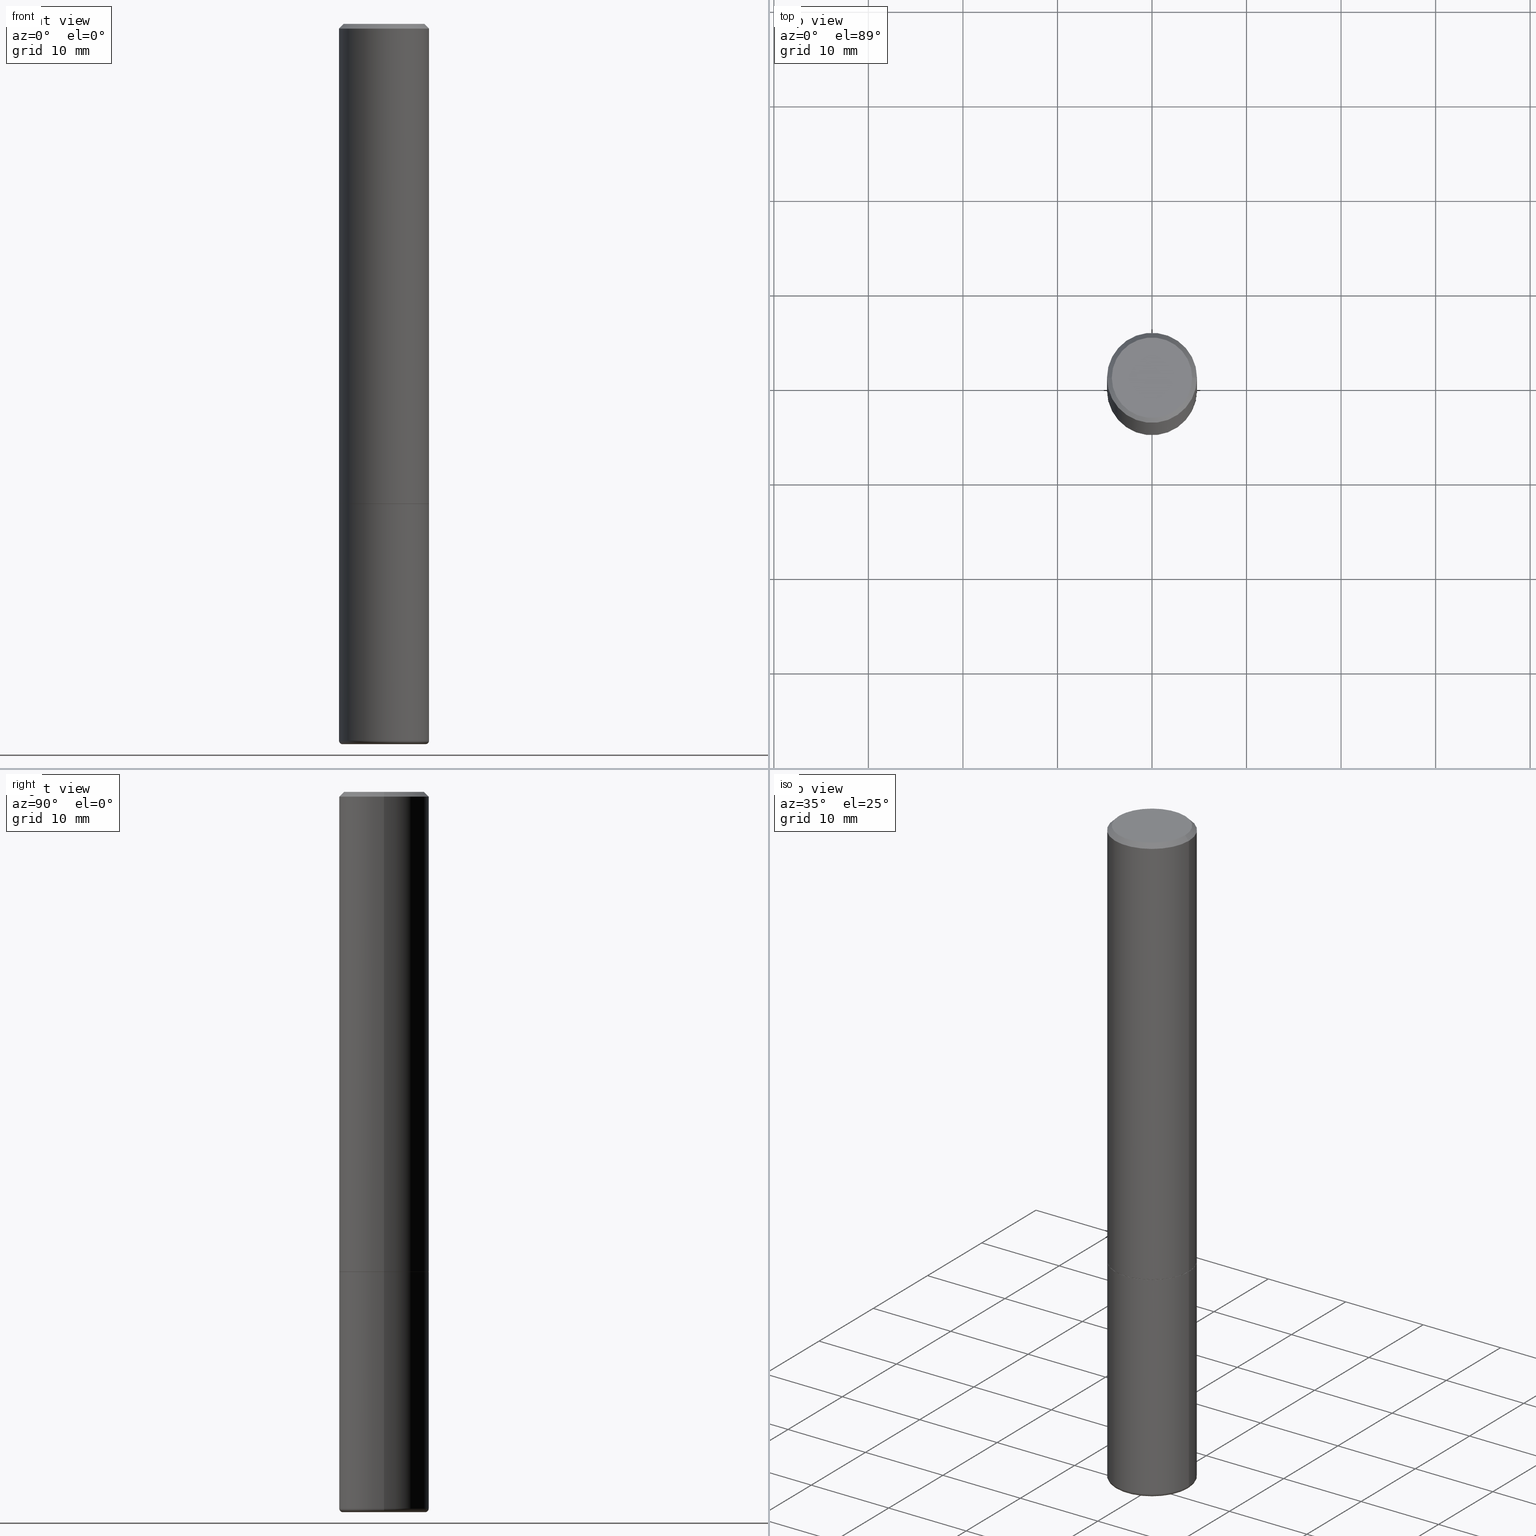
[diagram: canonical four-view strip — front | top / right | iso, engineering-drawing reading convention]
A machine part, canonical four-view strip (front | top / right | iso — engineering-drawing reading convention). The complete STEP part file that produces these views, byte-faithful:
ISO-10303-21;
HEADER;
FILE_DESCRIPTION (( 'STEP AP203' ),
    '1' );
FILE_NAME ('35680.STEP',
    '2022-11-02T20:40:26',
    ( '' ),
    ( '' ),
    'SwSTEP 2.0',
    'SolidWorks 2022',
    '' );
FILE_SCHEMA (( 'CONFIG_CONTROL_DESIGN' ));
ENDSEC;

DATA;
#1 = CC_DESIGN_PERSON_AND_ORGANIZATION_ASSIGNMENT ( #162, #322, ( #224 ) ) ;
#2 = APPLICATION_PROTOCOL_DEFINITION ( 'international standard', 'config_control_design', 1994, #86 ) ;
#3 = ADVANCED_FACE ( 'NONE', ( #143 ), #356, .F. ) ;
#4 = DIRECTION ( 'NONE',  ( -1.000000000000000000, 6.982962677686265922E-15, -4.876176775795935793E-29 ) ) ;
#5 = CIRCLE ( 'NONE', #76, 0.1523703519675246587 ) ;
#6 = EDGE_LOOP ( 'NONE', ( #138, #144, #220, #173 ) ) ;
#7 = VECTOR ( 'NONE', #341, 39.37007874015748854 ) ;
#8 = AXIS2_PLACEMENT_3D ( 'NONE', #98, #256, #100 ) ;
#9 = CARTESIAN_POINT ( 'NONE',  ( -1.043851414335219820E-46, 1.490343170380447200E-32, 4.268512490100411279E-18 ) ) ;
#10 = CARTESIAN_POINT ( 'NONE',  ( 4.890937612370274875E-29, -6.982962677686292743E-15, -2.000000000000000444 ) ) ;
#11 = CARTESIAN_POINT ( 'NONE',  ( 0.1874999999999996392, -1.309305502066172642E-15, 9.142831454617361395E-30 ) ) ;
#12 = DIRECTION ( 'NONE',  ( -2.445468806185136597E-29, 3.491481338843145583E-15, 1.000000000000000000 ) ) ;
#13 = AXIS2_PLACEMENT_3D ( 'NONE', #264, #355, #4 ) ;
#14 = CARTESIAN_POINT ( 'NONE',  ( -1.043851414335219820E-46, 1.490343170380447200E-32, 4.268512490100411279E-18 ) ) ;
#15 = EDGE_CURVE ( 'NONE', #181, #215, #127, .T. ) ;
#16 = ORIENTED_EDGE ( 'NONE', *, *, #37, .T. ) ;
#17 = CARTESIAN_POINT ( 'NONE',  ( -0.1874999999999992228, 1.239475875289306582E-15, -0.02000000000000008021 ) ) ;
#18 = DIRECTION ( 'NONE',  ( 1.000000000000000000, -6.982962677686267499E-15, 0.000000000000000000 ) ) ;
#19 = EDGE_CURVE ( 'NONE', #181, #104, #24, .T. ) ;
#20 = DIRECTION ( 'NONE',  ( -2.445468806185136597E-29, 3.491481338843145583E-15, 1.000000000000000000 ) ) ;
#21 = PLANE ( 'NONE',  #411 ) ;
#22 = ORIENTED_EDGE ( 'NONE', *, *, #197, .T. ) ;
#23 = CARTESIAN_POINT ( 'NONE',  ( 7.299725783202014843E-29, -1.042207379062045357E-14, -2.985000571154037718 ) ) ;
#24 = LINE ( 'NONE', #178, #240 ) ;
#25 = FACE_OUTER_BOUND ( 'NONE', #288, .T. ) ;
#26 = ORIENTED_EDGE ( 'NONE', *, *, #199, .F. ) ;
#27 = ORIENTED_EDGE ( 'NONE', *, *, #324, .F. ) ;
#28 = EDGE_LOOP ( 'NONE', ( #294, #255 ) ) ;
#29 = LINE ( 'NONE', #221, #7 ) ;
#30 = ORIENTED_EDGE ( 'NONE', *, *, #184, .F. ) ;
#31 = PERSON_AND_ORGANIZATION ( #477, #148 ) ;
#32 = UNCERTAINTY_MEASURE_WITH_UNIT (LENGTH_MEASURE( 1.000000000000000082E-05 ), #236, 'distance_accuracy_value', 'NONE');
#33 = ADVANCED_FACE ( 'NONE', ( #383 ), #21, .F. ) ;
#34 = APPROVAL ( #198, 'UNSPECIFIED' ) ;
#35 = CALENDAR_DATE ( 2022, 2, 11 ) ;
#36 = ORIENTED_EDGE ( 'NONE', *, *, #227, .T. ) ;
#37 = EDGE_CURVE ( 'NONE', #302, #208, #442, .T. ) ;
#38 = VERTEX_POINT ( 'NONE', #101 ) ;
#39 = CONICAL_SURFACE ( 'NONE', #394, 0.1523703519675246587, 1.535889741755009030 ) ;
#40 = CC_DESIGN_PERSON_AND_ORGANIZATION_ASSIGNMENT ( #31, #65, ( #210 ) ) ;
#41 = PRODUCT_DEFINITION ( 'UNKNOWN', '', #224, #63 ) ;
#42 = CIRCLE ( 'NONE', #50, 0.1723691019675246683 ) ;
#43 = DIRECTION ( 'NONE',  ( 1.000000000000000000, -6.982962677686266711E-15, 0.000000000000000000 ) ) ;
#44 = EDGE_CURVE ( 'NONE', #215, #58, #414, .T. ) ;
#45 = CARTESIAN_POINT ( 'NONE',  ( -0.1523703519675246587, -9.409838179720655095E-15, -2.999825473552770294 ) ) ;
#46 = DIRECTION ( 'NONE',  ( 1.000000000000000000, -6.982962677686266711E-15, 0.000000000000000000 ) ) ;
#47 = CARTESIAN_POINT ( 'NONE',  ( 7.336406418555409790E-29, -1.047444401652943635E-14, -3.000000000000000444 ) ) ;
#48 = CARTESIAN_POINT ( 'NONE',  ( 0.000000000000000000, 0.000000000000000000, 0.000000000000000000 ) ) ;
#49 = CONICAL_SURFACE ( 'NONE', #349, 0.1874999999999992228, 0.7853981633974477239 ) ;
#50 = AXIS2_PLACEMENT_3D ( 'NONE', #397, #131, #473 ) ;
#51 = LINE ( 'NONE', #11, #321 ) ;
#52 = CARTESIAN_POINT ( 'NONE',  ( 4.890937612370293302E-31, -6.982962677686318726E-17, -0.02000000000000008021 ) ) ;
#53 = CARTESIAN_POINT ( 'NONE',  ( 1.309305502066224115E-15, 0.1874999999999930611, -2.000000000000000888 ) ) ;
#54 = CARTESIAN_POINT ( 'NONE',  ( 7.336406418555409790E-29, -1.047444401652943635E-14, -3.000000000000000444 ) ) ;
#55 = ORIENTED_EDGE ( 'NONE', *, *, #419, .T. ) ;
#56 = DIRECTION ( 'NONE',  ( -2.445468806185136597E-29, 3.491481338843145583E-15, 1.000000000000000000 ) ) ;
#57 = EDGE_CURVE ( 'NONE', #271, #70, #29, .T. ) ;
#58 = VERTEX_POINT ( 'NONE', #103 ) ;
#59 = AXIS2_PLACEMENT_3D ( 'NONE', #23, #409, #329 ) ;
#60 = APPROVAL_PERSON_ORGANIZATION ( #185, #331, #418 ) ;
#61 = VERTEX_POINT ( 'NONE', #140 ) ;
#62 =( NAMED_UNIT ( * ) PLANE_ANGLE_UNIT ( ) SI_UNIT ( $, .RADIAN. ) );
#63 = DESIGN_CONTEXT ( 'detailed design', #278, 'design' ) ;
#64 = DIRECTION ( 'NONE',  ( -0.7071067811864388819, 7.493145998869961307E-15, 0.7071067811866561525 ) ) ;
#65 = PERSON_AND_ORGANIZATION_ROLE ( 'design_owner' ) ;
#66 = EDGE_CURVE ( 'NONE', #70, #309, #69, .T. ) ;
#67 = DIRECTION ( 'NONE',  ( -2.445468806185136597E-29, 3.491481338843145583E-15, 1.000000000000000000 ) ) ;
#68 = ORIENTED_EDGE ( 'NONE', *, *, #392, .T. ) ;
#69 = CIRCLE ( 'NONE', #193, 0.1523703519675246587 ) ;
#70 = VERTEX_POINT ( 'NONE', #45 ) ;
#71 = ADVANCED_FACE ( 'NONE', ( #325 ), #470, .T. ) ;
#72 = AXIS2_PLACEMENT_3D ( 'NONE', #145, #382, #182 ) ;
#73 = ORIENTED_EDGE ( 'NONE', *, *, #141, .T. ) ;
#74 = CARTESIAN_POINT ( 'NONE',  ( 0.1723691019675246683, -1.165698189545531710E-14, -3.000000000000000444 ) ) ;
#75 = ORIENTED_EDGE ( 'NONE', *, *, #141, .F. ) ;
#76 = AXIS2_PLACEMENT_3D ( 'NONE', #237, #67, #389 ) ;
#77 = CC_DESIGN_APPROVAL ( #331, ( #41 ) ) ;
#78 = EDGE_CURVE ( 'NONE', #115, #149, #385, .T. ) ;
#79 = COORDINATED_UNIVERSAL_TIME_OFFSET ( 5, 0, .BEHIND. ) ;
#80 = DATE_TIME_ROLE ( 'creation_date' ) ;
#81 = DIRECTION ( 'NONE',  ( -2.445468806185136597E-29, 3.491481338843145583E-15, 1.000000000000000000 ) ) ;
#82 = EDGE_CURVE ( 'NONE', #149, #377, #478, .T. ) ;
#83 = CALENDAR_DATE ( 2022, 2, 11 ) ;
#84 = CONICAL_SURFACE ( 'NONE', #187, 0.1874999999999992228, 0.7853981633974477239 ) ;
#85 = LOCAL_TIME ( 16, 40, 26.00000000000000000, #79 ) ;
#86 = APPLICATION_CONTEXT ( 'configuration controlled 3d designs of mechanical parts and assemblies' ) ;
#87 = DIRECTION ( 'NONE',  ( -0.7071067811865471286, 2.468850131082252722E-15, -0.7071067811865479058 ) ) ;
#88 = CARTESIAN_POINT ( 'NONE',  ( 0.1874999999999992228, -1.356173001359019944E-15, -0.02000000000000008021 ) ) ;
#89 = DIRECTION ( 'NONE',  ( 2.438088387897960049E-29, -3.491481338843145188E-15, -1.000000000000000000 ) ) ;
#90 = CYLINDRICAL_SURFACE ( 'NONE', #154, 0.1874999999999999722 ) ;
#91 = CARTESIAN_POINT ( 'NONE',  ( -0.1874999999999992228, 1.239475875289306582E-15, -0.02000000000000008021 ) ) ;
#92 = ORIENTED_EDGE ( 'NONE', *, *, #291, .T. ) ;
#93 = FACE_OUTER_BOUND ( 'NONE', #489, .T. ) ;
#94 = AXIS2_PLACEMENT_3D ( 'NONE', #270, #304, #484 ) ;
#95 = AXIS2_PLACEMENT_3D ( 'NONE', #54, #171, #102 ) ;
#96 = SECURITY_CLASSIFICATION ( '', '', #359 ) ;
#97 = EDGE_LOOP ( 'NONE', ( #246, #378, #75, #229 ) ) ;
#98 = CARTESIAN_POINT ( 'NONE',  ( 0.1725000000000002087, -1.162663485252133521E-14, -2.985000571154037718 ) ) ;
#99 = ORIENTED_EDGE ( 'NONE', *, *, #44, .F. ) ;
#100 = DIRECTION ( 'NONE',  ( 1.000000000000000000, -6.982962677686213068E-15, 0.000000000000000000 ) ) ;
#101 = CARTESIAN_POINT ( 'NONE',  ( -0.1723691019675246683, -9.169747022437267907E-15, -3.000000000000000444 ) ) ;
#102 = DIRECTION ( 'NONE',  ( -1.000000000000000000, 6.982962677686265922E-15, 0.000000000000000000 ) ) ;
#103 = CARTESIAN_POINT ( 'NONE',  ( -0.1875000000000000278, -2.192382782011959991E-15, -1.999000000000000110 ) ) ;
#104 = VERTEX_POINT ( 'NONE', #443 ) ;
#105 = DIRECTION ( 'NONE',  ( -2.445468806185136597E-29, 3.491481338843145583E-15, 1.000000000000000000 ) ) ;
#106 = ORIENTED_EDGE ( 'NONE', *, *, #37, .F. ) ;
#107 = CIRCLE ( 'NONE', #241, 0.1874999999999992228 ) ;
#108 = DIRECTION ( 'NONE',  ( -1.000000000000000000, 6.982962677686263555E-15, 0.000000000000000000 ) ) ;
#109 = APPROVAL_STATUS ( 'not_yet_approved' ) ;
#110 = EDGE_CURVE ( 'NONE', #38, #261, #251, .T. ) ;
#111 = EDGE_LOOP ( 'NONE', ( #228, #279, #481, #298 ) ) ;
#112 = CONICAL_SURFACE ( 'NONE', #95, 0.1723691019675246683, 1.562069680534943661 ) ;
#113 = DIRECTION ( 'NONE',  ( 1.000000000000000000, -6.982962677686267499E-15, 0.000000000000000000 ) ) ;
#114 = ORIENTED_EDGE ( 'NONE', *, *, #199, .T. ) ;
#115 = VERTEX_POINT ( 'NONE', #440 ) ;
#116 = PERSON_AND_ORGANIZATION_ROLE ( 'creator' ) ;
#117 = EDGE_LOOP ( 'NONE', ( #343, #447 ) ) ;
#118 = AXIS2_PLACEMENT_3D ( 'NONE', #444, #12, #139 ) ;
#119 = APPROVAL_PERSON_ORGANIZATION ( #203, #301, #462 ) ;
#120 = ADVANCED_FACE ( 'NONE', ( #327 ), #363, .F. ) ;
#121 = ADVANCED_FACE ( 'NONE', ( #287 ), #49, .T. ) ;
#122 = APPROVAL_STATUS ( 'not_yet_approved' ) ;
#123 = PRODUCT_DEFINITION_SHAPE ( 'NONE', 'NONE',  #41 ) ;
#124 = EDGE_CURVE ( 'NONE', #215, #181, #422, .T. ) ;
#125 = DIRECTION ( 'NONE',  ( 2.445468806185136597E-29, -3.491481338843145583E-15, -1.000000000000000000 ) ) ;
#126 = CARTESIAN_POINT ( 'NONE',  ( -0.1674999999999991773, 1.204561061900875131E-15, 4.268512490092109750E-18 ) ) ;
#127 = CIRCLE ( 'NONE', #94, 0.1864999999999999714 ) ;
#128 = VECTOR ( 'NONE', #250, 39.37007874015748854 ) ;
#129 = DIRECTION ( 'NONE',  ( 1.000000000000000000, -6.982962677686265133E-15, 4.875936752492917305E-29 ) ) ;
#130 = DIRECTION ( 'NONE',  ( -2.445468806185136877E-29, 3.491481338843145188E-15, 1.000000000000000000 ) ) ;
#131 = DIRECTION ( 'NONE',  ( -2.445468806185136597E-29, 3.491481338843145583E-15, 1.000000000000000000 ) ) ;
#132 = CARTESIAN_POINT ( 'NONE',  ( 0.1523703519675246587, -1.151917115528874791E-14, -2.999825473552770294 ) ) ;
#133 = CARTESIAN_POINT ( 'NONE',  ( -0.1864999999999999714, -5.652502021145483501E-15, -2.000000000000000444 ) ) ;
#134 = DIRECTION ( 'NONE',  ( 0.7071067811865471286, -7.319954787623254468E-15, -0.7071067811865479058 ) ) ;
#135 = AXIS2_PLACEMENT_3D ( 'NONE', #10, #160, #248 ) ;
#136 = CIRCLE ( 'NONE', #351, 0.1674999999999991773 ) ;
#137 = ORIENTED_EDGE ( 'NONE', *, *, #184, .T. ) ;
#138 = ORIENTED_EDGE ( 'NONE', *, *, #15, .T. ) ;
#139 = DIRECTION ( 'NONE',  ( 1.000000000000000000, -6.982962677686271444E-15, 4.883557194083115143E-29 ) ) ;
#140 = CARTESIAN_POINT ( 'NONE',  ( 0.1874999999999999722, -1.173137929268662858E-14, -2.985000571154037718 ) ) ;
#141 = EDGE_CURVE ( 'NONE', #208, #302, #207, .T. ) ;
#142 = FACE_OUTER_BOUND ( 'NONE', #268, .T. ) ;
#143 = FACE_OUTER_BOUND ( 'NONE', #297, .T. ) ;
#144 = ORIENTED_EDGE ( 'NONE', *, *, #44, .T. ) ;
#145 = CARTESIAN_POINT ( 'NONE',  ( 0.000000000000000000, 0.000000000000000000, 0.000000000000000000 ) ) ;
#146 = ORIENTED_EDGE ( 'NONE', *, *, #490, .F. ) ;
#147 = CIRCLE ( 'NONE', #403, 0.1875000000000000278 ) ;
#148 = ORGANIZATION ( 'UNSPECIFIED', 'UNSPECIFIED', '' ) ;
#149 = VERTEX_POINT ( 'NONE', #126 ) ;
#150 = DIRECTION ( 'NONE',  ( -2.445468806185136597E-29, 3.491481338843145583E-15, 1.000000000000000000 ) ) ;
#151 = EDGE_CURVE ( 'NONE', #104, #263, #51, .T. ) ;
#152 = ORIENTED_EDGE ( 'NONE', *, *, #430, .T. ) ;
#153 = CARTESIAN_POINT ( 'NONE',  ( 0.1874999999999999722, -1.309305502066174811E-15, 9.142831454617378210E-30 ) ) ;
#154 = AXIS2_PLACEMENT_3D ( 'NONE', #48, #20, #168 ) ;
#155 = PERSON_AND_ORGANIZATION ( #477, #148 ) ;
#156 = PERSON_AND_ORGANIZATION_ROLE ( 'creator' ) ;
#157 = AXIS2_PLACEMENT_3D ( 'NONE', #272, #105, #350 ) ;
#158 = CC_DESIGN_APPROVAL ( #34, ( #224 ) ) ;
#159 = ADVANCED_FACE ( 'NONE', ( #467 ), #317, .F. ) ;
#160 = DIRECTION ( 'NONE',  ( -2.445468806185136597E-29, 3.491481338843145583E-15, 1.000000000000000000 ) ) ;
#161 = DIMENSIONAL_EXPONENTS ( 1.000000000000000000, 0.000000000000000000, 0.000000000000000000, 0.000000000000000000, 0.000000000000000000, 0.000000000000000000, 0.000000000000000000 ) ;
#162 = PERSON_AND_ORGANIZATION ( #477, #148 ) ;
#163 = DIRECTION ( 'NONE',  ( 1.000000000000000000, -6.982962677686271444E-15, 4.883557194083115143E-29 ) ) ;
#164 = DIRECTION ( 'NONE',  ( -1.000000000000000000, 6.982962677686265922E-15, 0.000000000000000000 ) ) ;
#165 = AXIS2_PLACEMENT_3D ( 'NONE', #445, #267, #449 ) ;
#166 = DIRECTION ( 'NONE',  ( 1.000000000000000000, -6.982962677686269077E-15, 0.000000000000000000 ) ) ;
#167 = AXIS2_PLACEMENT_3D ( 'NONE', #202, #245, #330 ) ;
#168 = DIRECTION ( 'NONE',  ( 1.000000000000000000, -6.982962677686266711E-15, 4.876176775795935793E-29 ) ) ;
#169 = EDGE_LOOP ( 'NONE', ( #233, #92, #347, #106 ) ) ;
#170 = CARTESIAN_POINT ( 'NONE',  ( -0.1874999999999999722, 1.332267629550187651E-15, -9.223003294227946589E-30 ) ) ;
#171 = DIRECTION ( 'NONE',  ( 2.445468806185136597E-29, -3.491481338843145583E-15, -1.000000000000000000 ) ) ;
#172 = DIRECTION ( 'NONE',  ( 1.000000000000000000, -6.982962677686265922E-15, 4.876176775795935793E-29 ) ) ;
#173 = ORIENTED_EDGE ( 'NONE', *, *, #19, .F. ) ;
#174 = FACE_OUTER_BOUND ( 'NONE', #188, .T. ) ;
#175 = AXIS2_PLACEMENT_3D ( 'NONE', #486, #455, #108 ) ;
#176 = EDGE_CURVE ( 'NONE', #149, #115, #136, .T. ) ;
#177 = CIRCLE ( 'NONE', #167, 0.1875000000000000278 ) ;
#178 = CARTESIAN_POINT ( 'NONE',  ( 0.1864999999999999714, -8.285285217074782526E-15, -2.000000000000000444 ) ) ;
#179 = FACE_OUTER_BOUND ( 'NONE', #97, .T. ) ;
#180 = ORIENTED_EDGE ( 'NONE', *, *, #124, .T. ) ;
#181 = VERTEX_POINT ( 'NONE', #206 ) ;
#182 = DIRECTION ( 'NONE',  ( 1.000000000000000000, 0.000000000000000000, 0.000000000000000000 ) ) ;
#183 = CARTESIAN_POINT ( 'NONE',  ( 4.890937612370274875E-29, -6.982962677686292743E-15, -2.000000000000000444 ) ) ;
#184 = EDGE_CURVE ( 'NONE', #58, #104, #177, .T. ) ;
#185 = PERSON_AND_ORGANIZATION ( #477, #148 ) ;
#186 = AXIS2_PLACEMENT_3D ( 'NONE', #323, #368, #43 ) ;
#187 = AXIS2_PLACEMENT_3D ( 'NONE', #52, #367, #476 ) ;
#188 = EDGE_LOOP ( 'NONE', ( #305, #68, #410 ) ) ;
#189 = DATE_AND_TIME ( #35, #286 ) ;
#190 = MECHANICAL_CONTEXT ( 'NONE', #86, 'mechanical' ) ;
#191 = ORIENTED_EDGE ( 'NONE', *, *, #110, .F. ) ;
#192 = CARTESIAN_POINT ( 'NONE',  ( 0.1723691019675246683, -1.167809102235495986E-14, -3.000000000000000444 ) ) ;
#193 = AXIS2_PLACEMENT_3D ( 'NONE', #300, #262, #293 ) ;
#194 = VECTOR ( 'NONE', #134, 39.37007874015748143 ) ;
#195 = CC_DESIGN_SECURITY_CLASSIFICATION ( #96, ( #224 ) ) ;
#196 = SHAPE_DEFINITION_REPRESENTATION ( #123, #209 ) ;
#197 = EDGE_CURVE ( 'NONE', #463, #38, #42, .T. ) ;
#198 = APPROVAL_STATUS ( 'not_yet_approved' ) ;
#199 = EDGE_CURVE ( 'NONE', #70, #38, #290, .T. ) ;
#200 = DATE_AND_TIME ( #318, #358 ) ;
#201 = AXIS2_PLACEMENT_3D ( 'NONE', #404, #56, #166 ) ;
#202 = CARTESIAN_POINT ( 'NONE',  ( 4.888492143564088712E-29, -6.979471196347448158E-15, -1.999000000000000110 ) ) ;
#203 = PERSON_AND_ORGANIZATION ( #477, #148 ) ;
#204 = DIRECTION ( 'NONE',  ( 7.105427357601001859E-15, 1.000000000000000000, -3.491481338843145583E-15 ) ) ;
#205 = DIRECTION ( 'NONE',  ( 1.000000000000000000, -6.982962677686267499E-15, 4.876176775795935232E-29 ) ) ;
#206 = CARTESIAN_POINT ( 'NONE',  ( 0.1864999999999999714, -8.285285217074782526E-15, -2.000000000000000444 ) ) ;
#207 = CIRCLE ( 'NONE', #186, 0.1875000000000000278 ) ;
#208 = VERTEX_POINT ( 'NONE', #402 ) ;
#209 = ADVANCED_BREP_SHAPE_REPRESENTATION ( '35680', ( #334, #336, #72 ), #232 ) ;
#210 = PRODUCT ( '35680', '35680', '', ( #190 ) ) ;
#211 = LINE ( 'NONE', #88, #194 ) ;
#212 = CIRCLE ( 'NONE', #223, 0.1723691019675246683 ) ;
#213 = DIRECTION ( 'NONE',  ( 1.000000000000000000, -6.982962677686265133E-15, 4.875936752492917305E-29 ) ) ;
#214 = EDGE_CURVE ( 'NONE', #377, #263, #281, .T. ) ;
#215 = VERTEX_POINT ( 'NONE', #133 ) ;
#216 = FACE_OUTER_BOUND ( 'NONE', #326, .T. ) ;
#217 = DIRECTION ( 'NONE',  ( -1.000000000000000000, 6.982962677686265922E-15, -4.876176775795935793E-29 ) ) ;
#218 = EDGE_CURVE ( 'NONE', #261, #302, #244, .T. ) ;
#219 = CYLINDRICAL_SURFACE ( 'NONE', #413, 0.1874999999999996392 ) ;
#220 = ORIENTED_EDGE ( 'NONE', *, *, #276, .F. ) ;
#221 = CARTESIAN_POINT ( 'NONE',  ( -0.1523703519675246587, -9.409838179720655095E-15, -2.999825473552770294 ) ) ;
#222 = CARTESIAN_POINT ( 'NONE',  ( -0.1874999999999999722, -7.370250604603186490E-15, -2.985000571154037718 ) ) ;
#223 = AXIS2_PLACEMENT_3D ( 'NONE', #260, #274, #459 ) ;
#224 = PRODUCT_DEFINITION_FORMATION_WITH_SPECIFIED_SOURCE ( 'ANY', '', #210, .NOT_KNOWN. ) ;
#225 = ORIENTED_EDGE ( 'NONE', *, *, #430, .F. ) ;
#226 = ORIENTED_EDGE ( 'NONE', *, *, #480, .F. ) ;
#227 = EDGE_CURVE ( 'NONE', #463, #61, #253, .T. ) ;
#228 = ORIENTED_EDGE ( 'NONE', *, *, #314, .F. ) ;
#229 = ORIENTED_EDGE ( 'NONE', *, *, #461, .F. ) ;
#230 = FACE_OUTER_BOUND ( 'NONE', #6, .T. ) ;
#231 = CLOSED_SHELL ( 'NONE', ( #465, #280, #353, #121, #238, #312, #33, #446 ) ) ;
#232 =( GEOMETRIC_REPRESENTATION_CONTEXT ( 3 ) GLOBAL_UNCERTAINTY_ASSIGNED_CONTEXT ( ( #32 ) ) GLOBAL_UNIT_ASSIGNED_CONTEXT ( ( #236, #62, #313 ) ) REPRESENTATION_CONTEXT ( 'NONE', 'WORKASPACE' ) );
#233 = ORIENTED_EDGE ( 'NONE', *, *, #218, .F. ) ;
#234 = ORIENTED_EDGE ( 'NONE', *, *, #151, .F. ) ;
#235 = CC_DESIGN_PERSON_AND_ORGANIZATION_ASSIGNMENT ( #239, #116, ( #224 ) ) ;
#236 =( CONVERSION_BASED_UNIT ( 'INCH', #386 ) LENGTH_UNIT ( ) NAMED_UNIT ( #161 ) );
#237 = CARTESIAN_POINT ( 'NONE',  ( 7.335979619572855964E-29, -1.047383466069579976E-14, -2.999825473552770294 ) ) ;
#238 = ADVANCED_FACE ( 'NONE', ( #25 ), #258, .T. ) ;
#239 = PERSON_AND_ORGANIZATION ( #477, #148 ) ;
#240 = VECTOR ( 'NONE', #407, 39.37007874015748143 ) ;
#241 = AXIS2_PLACEMENT_3D ( 'NONE', #457, #150, #113 ) ;
#242 = COORDINATED_UNIVERSAL_TIME_OFFSET ( 5, 0, .BEHIND. ) ;
#243 = PERSON_AND_ORGANIZATION ( #477, #148 ) ;
#244 = LINE ( 'NONE', #170, #285 ) ;
#245 = DIRECTION ( 'NONE',  ( -2.445468806185136597E-29, 3.491481338843145583E-15, 1.000000000000000000 ) ) ;
#246 = ORIENTED_EDGE ( 'NONE', *, *, #490, .T. ) ;
#247 = CARTESIAN_POINT ( 'NONE',  ( -0.1875000000000000278, -7.370250604603186490E-15, -2.000000000000000444 ) ) ;
#248 = DIRECTION ( 'NONE',  ( 1.000000000000000000, -6.982962677686269077E-15, 0.000000000000000000 ) ) ;
#249 = DIRECTION ( 'NONE',  ( -2.445468806185136597E-29, 3.491481338843145583E-15, 1.000000000000000000 ) ) ;
#250 = DIRECTION ( 'NONE',  ( -0.9999619230641714207, 6.952228252019235511E-15, -0.008726535498355246501 ) ) ;
#251 = CIRCLE ( 'NONE', #428, 0.01499999999999983985 ) ;
#252 = ORIENTED_EDGE ( 'NONE', *, *, #82, .F. ) ;
#253 = CIRCLE ( 'NONE', #8, 0.01499999999999983985 ) ;
#254 = CARTESIAN_POINT ( 'NONE',  ( 4.888492143564088712E-29, -6.979471196347448158E-15, -1.999000000000000110 ) ) ;
#255 = ORIENTED_EDGE ( 'NONE', *, *, #124, .F. ) ;
#256 = DIRECTION ( 'NONE',  ( -6.982962677686266711E-15, -1.000000000000000000, 3.491481338843145583E-15 ) ) ;
#257 = ADVANCED_FACE ( 'NONE', ( #401 ), #424, .T. ) ;
#258 = CYLINDRICAL_SURFACE ( 'NONE', #471, 0.1874999999999996392 ) ;
#259 = ORIENTED_EDGE ( 'NONE', *, *, #433, .F. ) ;
#260 = CARTESIAN_POINT ( 'NONE',  ( 7.336406418555409790E-29, -1.047444401652943635E-14, -3.000000000000000444 ) ) ;
#261 = VERTEX_POINT ( 'NONE', #222 ) ;
#262 = DIRECTION ( 'NONE',  ( -2.445468806185136597E-29, 3.491481338843145583E-15, 1.000000000000000000 ) ) ;
#263 = VERTEX_POINT ( 'NONE', #406 ) ;
#264 = CARTESIAN_POINT ( 'NONE',  ( 1.169646248512443679E-15, 0.1674999999999991773, -5.826888680111736968E-16 ) ) ;
#265 = AXIS2_PLACEMENT_3D ( 'NONE', #405, #475, #163 ) ;
#266 = AXIS2_PLACEMENT_3D ( 'NONE', #371, #437, #289 ) ;
#267 = DIRECTION ( 'NONE',  ( -2.445468806185136597E-29, 3.491481338843145583E-15, 1.000000000000000000 ) ) ;
#268 = EDGE_LOOP ( 'NONE', ( #99, #180, #273, #30 ) ) ;
#269 = DIRECTION ( 'NONE',  ( -2.445468806185136877E-29, 3.491481338843145188E-15, 1.000000000000000000 ) ) ;
#270 = CARTESIAN_POINT ( 'NONE',  ( 4.890937612370274875E-29, -6.982962677686292743E-15, -2.000000000000000444 ) ) ;
#271 = VERTEX_POINT ( 'NONE', #479 ) ;
#272 = CARTESIAN_POINT ( 'NONE',  ( 7.299725783202014843E-29, -1.042207379062045357E-14, -2.985000571154037718 ) ) ;
#273 = ORIENTED_EDGE ( 'NONE', *, *, #19, .T. ) ;
#274 = DIRECTION ( 'NONE',  ( -2.445468806185136597E-29, 3.491481338843145583E-15, 1.000000000000000000 ) ) ;
#275 = VECTOR ( 'NONE', #441, 39.37007874015748854 ) ;
#276 = EDGE_CURVE ( 'NONE', #104, #58, #147, .T. ) ;
#277 = COORDINATED_UNIVERSAL_TIME_OFFSET ( 5, 0, .BEHIND. ) ;
#278 = APPLICATION_CONTEXT ( 'configuration controlled 3d designs of mechanical parts and assemblies' ) ;
#279 = ORIENTED_EDGE ( 'NONE', *, *, #176, .F. ) ;
#280 = ADVANCED_FACE ( 'NONE', ( #216 ), #219, .T. ) ;
#281 = CIRCLE ( 'NONE', #460, 0.1874999999999992228 ) ;
#282 = COORDINATED_UNIVERSAL_TIME_OFFSET ( 5, 0, .BEHIND. ) ;
#283 = CARTESIAN_POINT ( 'NONE',  ( -0.1723691019675246683, -9.270797010703914428E-15, -3.000000000000000444 ) ) ;
#284 = DIRECTION ( 'NONE',  ( -2.445468806185136877E-29, 3.491481338843145188E-15, 1.000000000000000000 ) ) ;
#285 = VECTOR ( 'NONE', #333, 39.37007874015748143 ) ;
#286 = LOCAL_TIME ( 16, 40, 26.00000000000000000, #277 ) ;
#287 = FACE_OUTER_BOUND ( 'NONE', #111, .T. ) ;
#288 = EDGE_LOOP ( 'NONE', ( #27, #137, #472, #412 ) ) ;
#289 = DIRECTION ( 'NONE',  ( 1.000000000000000000, -6.982962677686266711E-15, 4.876176775795935793E-29 ) ) ;
#290 = LINE ( 'NONE', #283, #128 ) ;
#291 = EDGE_CURVE ( 'NONE', #261, #61, #482, .T. ) ;
#292 = EDGE_LOOP ( 'NONE', ( #415, #381, #380, #252 ) ) ;
#293 = DIRECTION ( 'NONE',  ( 1.000000000000000000, -6.982962677686263555E-15, 0.000000000000000000 ) ) ;
#294 = ORIENTED_EDGE ( 'NONE', *, *, #15, .F. ) ;
#295 = AXIS2_PLACEMENT_3D ( 'NONE', #53, #89, #217 ) ;
#296 = LINE ( 'NONE', #398, #454 ) ;
#297 = EDGE_LOOP ( 'NONE', ( #344, #365, #225 ) ) ;
#298 = ORIENTED_EDGE ( 'NONE', *, *, #214, .T. ) ;
#299 = DIRECTION ( 'NONE',  ( -2.445468806185136597E-29, 3.491481338843145583E-15, 1.000000000000000000 ) ) ;
#300 = CARTESIAN_POINT ( 'NONE',  ( 7.335979619572855964E-29, -1.047383466069579976E-14, -2.999825473552770294 ) ) ;
#301 = APPROVAL ( #122, 'UNSPECIFIED' ) ;
#302 = VERTEX_POINT ( 'NONE', #247 ) ;
#303 = APPLICATION_PROTOCOL_DEFINITION ( 'international standard', 'config_control_design', 1994, #278 ) ;
#304 = DIRECTION ( 'NONE',  ( -2.445468806185136597E-29, 3.491481338843145583E-15, 1.000000000000000000 ) ) ;
#305 = ORIENTED_EDGE ( 'NONE', *, *, #57, .F. ) ;
#306 = VECTOR ( 'NONE', #87, 39.37007874015748143 ) ;
#307 = VECTOR ( 'NONE', #269, 39.37007874015748143 ) ;
#308 = EDGE_LOOP ( 'NONE', ( #22, #337, #146, #427 ) ) ;
#309 = VERTEX_POINT ( 'NONE', #474 ) ;
#310 = ORIENTED_EDGE ( 'NONE', *, *, #291, .F. ) ;
#311 = DIRECTION ( 'NONE',  ( -2.445468806185136597E-29, 3.491481338843145583E-15, 1.000000000000000000 ) ) ;
#312 = ADVANCED_FACE ( 'NONE', ( #142 ), #357, .T. ) ;
#313 =( NAMED_UNIT ( * ) SI_UNIT ( $, .STERADIAN. ) SOLID_ANGLE_UNIT ( ) );
#314 = EDGE_CURVE ( 'NONE', #115, #263, #211, .T. ) ;
#315 = DIRECTION ( 'NONE',  ( 1.000000000000000000, -6.982962677686269077E-15, 0.000000000000000000 ) ) ;
#316 = CLOSED_SHELL ( 'NONE', ( #159, #257, #362, #417, #3, #120, #384, #71, #408 ) ) ;
#317 = CONICAL_SURFACE ( 'NONE', #328, 0.1723691019675246683, 1.562069680534943661 ) ;
#318 = CALENDAR_DATE ( 2022, 2, 11 ) ;
#319 = DATE_AND_TIME ( #393, #425 ) ;
#320 = PERSON_AND_ORGANIZATION_ROLE ( 'classification_officer' ) ;
#321 = VECTOR ( 'NONE', #284, 39.37007874015748143 ) ;
#322 = PERSON_AND_ORGANIZATION_ROLE ( 'design_supplier' ) ;
#323 = CARTESIAN_POINT ( 'NONE',  ( 4.890937612370273754E-29, -6.982962677686291954E-15, -2.000000000000000444 ) ) ;
#324 = EDGE_CURVE ( 'NONE', #58, #377, #296, .T. ) ;
#325 = FACE_OUTER_BOUND ( 'NONE', #456, .T. ) ;
#326 = EDGE_LOOP ( 'NONE', ( #354, #375, #259, #234 ) ) ;
#327 = FACE_OUTER_BOUND ( 'NONE', #421, .T. ) ;
#328 = AXIS2_PLACEMENT_3D ( 'NONE', #47, #395, #164 ) ;
#329 = DIRECTION ( 'NONE',  ( 1.000000000000000000, -6.982962677686263555E-15, 0.000000000000000000 ) ) ;
#330 = DIRECTION ( 'NONE',  ( 1.000000000000000000, -6.982962677686266711E-15, 0.000000000000000000 ) ) ;
#331 = APPROVAL ( #109, 'UNSPECIFIED' ) ;
#332 = LINE ( 'NONE', #132, #275 ) ;
#333 = DIRECTION ( 'NONE',  ( -2.445468806185136877E-29, 3.491481338843145188E-15, 1.000000000000000000 ) ) ;
#334 = MANIFOLD_SOLID_BREP ( 'Body-Move/Copy2[1]', #316 ) ;
#335 = CARTESIAN_POINT ( 'NONE',  ( 7.335979619572855964E-29, -1.047383466069579976E-14, -2.999825473552770294 ) ) ;
#336 = MANIFOLD_SOLID_BREP ( 'Body-Move/Copy2[2]', #231 ) ;
#337 = ORIENTED_EDGE ( 'NONE', *, *, #110, .T. ) ;
#338 = DIRECTION ( 'NONE',  ( 2.445468806185136597E-29, -3.491481338843145583E-15, -1.000000000000000000 ) ) ;
#339 = APPROVAL_PERSON_ORGANIZATION ( #155, #34, #464 ) ;
#340 = PRODUCT_RELATED_PRODUCT_CATEGORY ( 'detail', '', ( #210 ) ) ;
#341 = DIRECTION ( 'NONE',  ( -0.9993908270190957621, 6.856857904024552526E-15, -0.03489949670250196839 ) ) ;
#342 = CARTESIAN_POINT ( 'NONE',  ( 0.000000000000000000, 0.000000000000000000, 0.000000000000000000 ) ) ;
#343 = ORIENTED_EDGE ( 'NONE', *, *, #176, .T. ) ;
#344 = ORIENTED_EDGE ( 'NONE', *, *, #392, .F. ) ;
#345 = FACE_OUTER_BOUND ( 'NONE', #117, .T. ) ;
#346 = CARTESIAN_POINT ( 'NONE',  ( -0.1864999999999999714, -5.657800475493706691E-15, -2.000000000000000444 ) ) ;
#347 = ORIENTED_EDGE ( 'NONE', *, *, #461, .T. ) ;
#348 = CC_DESIGN_PERSON_AND_ORGANIZATION_ASSIGNMENT ( #435, #320, ( #96 ) ) ;
#349 = AXIS2_PLACEMENT_3D ( 'NONE', #436, #125, #366 ) ;
#350 = DIRECTION ( 'NONE',  ( 1.000000000000000000, -6.982962677686263555E-15, 0.000000000000000000 ) ) ;
#351 = AXIS2_PLACEMENT_3D ( 'NONE', #14, #81, #213 ) ;
#352 = LINE ( 'NONE', #153, #307 ) ;
#353 = ADVANCED_FACE ( 'NONE', ( #379 ), #84, .T. ) ;
#354 = ORIENTED_EDGE ( 'NONE', *, *, #276, .T. ) ;
#355 = DIRECTION ( 'NONE',  ( 2.438088387897960049E-29, -3.491481338843145188E-15, -1.000000000000000000 ) ) ;
#356 = CONICAL_SURFACE ( 'NONE', #175, 0.1523703519675246587, 1.535889741755009030 ) ;
#357 = CONICAL_SURFACE ( 'NONE', #201, 0.1864999999999999714, 0.7853981633972946241 ) ;
#358 = LOCAL_TIME ( 16, 40, 26.00000000000000000, #282 ) ;
#359 = SECURITY_CLASSIFICATION_LEVEL ( 'unclassified' ) ;
#360 = DATE_AND_TIME ( #83, #431 ) ;
#361 = CC_DESIGN_APPROVAL ( #301, ( #96 ) ) ;
#362 = ADVANCED_FACE ( 'NONE', ( #179 ), #448, .T. ) ;
#363 = PLANE ( 'NONE',  #295 ) ;
#364 = APPROVAL_DATE_TIME ( #200, #301 ) ;
#365 = ORIENTED_EDGE ( 'NONE', *, *, #57, .T. ) ;
#366 = DIRECTION ( 'NONE',  ( -1.000000000000000000, 6.982962677686267499E-15, 0.000000000000000000 ) ) ;
#367 = DIRECTION ( 'NONE',  ( 2.445468806185136597E-29, -3.491481338843145583E-15, -1.000000000000000000 ) ) ;
#368 = DIRECTION ( 'NONE',  ( -2.445468806185136597E-29, 3.491481338843145583E-15, 1.000000000000000000 ) ) ;
#369 = AXIS2_PLACEMENT_3D ( 'NONE', #9, #438, #129 ) ;
#370 = VECTOR ( 'NONE', #451, 39.37007874015748854 ) ;
#371 = CARTESIAN_POINT ( 'NONE',  ( 0.000000000000000000, 0.000000000000000000, 0.000000000000000000 ) ) ;
#372 = DIRECTION ( 'NONE',  ( -2.445468806185136597E-29, 3.491481338843145583E-15, 1.000000000000000000 ) ) ;
#373 = ORIENTED_EDGE ( 'NONE', *, *, #419, .F. ) ;
#374 = DIRECTION ( 'NONE',  ( -2.445468806185136597E-29, 3.491481338843145583E-15, 1.000000000000000000 ) ) ;
#375 = ORIENTED_EDGE ( 'NONE', *, *, #324, .T. ) ;
#376 = DIRECTION ( 'NONE',  ( 1.000000000000000000, -6.982962677686267499E-15, 4.876176775795935232E-29 ) ) ;
#377 = VERTEX_POINT ( 'NONE', #17 ) ;
#378 = ORIENTED_EDGE ( 'NONE', *, *, #218, .T. ) ;
#379 = FACE_OUTER_BOUND ( 'NONE', #292, .T. ) ;
#380 = ORIENTED_EDGE ( 'NONE', *, *, #433, .T. ) ;
#381 = ORIENTED_EDGE ( 'NONE', *, *, #314, .T. ) ;
#382 = DIRECTION ( 'NONE',  ( 0.000000000000000000, 0.000000000000000000, 1.000000000000000000 ) ) ;
#383 = FACE_OUTER_BOUND ( 'NONE', #28, .T. ) ;
#384 = ADVANCED_FACE ( 'NONE', ( #439 ), #90, .T. ) ;
#385 = CIRCLE ( 'NONE', #369, 0.1674999999999991773 ) ;
#386 = LENGTH_MEASURE_WITH_UNIT ( LENGTH_MEASURE( 0.02539999999999999897 ), #416 );
#387 = AXIS2_PLACEMENT_3D ( 'NONE', #488, #311, #315 ) ;
#388 = ORIENTED_EDGE ( 'NONE', *, *, #66, .T. ) ;
#389 = DIRECTION ( 'NONE',  ( 1.000000000000000000, -6.982962677686263555E-15, 0.000000000000000000 ) ) ;
#390 = DATE_AND_TIME ( #391, #85 ) ;
#391 = CALENDAR_DATE ( 2022, 2, 11 ) ;
#392 = EDGE_CURVE ( 'NONE', #271, #309, #332, .T. ) ;
#393 = CALENDAR_DATE ( 2022, 2, 11 ) ;
#394 = AXIS2_PLACEMENT_3D ( 'NONE', #335, #338, #483 ) ;
#395 = DIRECTION ( 'NONE',  ( 2.445468806185136597E-29, -3.491481338843145583E-15, -1.000000000000000000 ) ) ;
#396 = DATE_TIME_ROLE ( 'classification_date' ) ;
#397 = CARTESIAN_POINT ( 'NONE',  ( 7.336406418555409790E-29, -1.047444401652943635E-14, -3.000000000000000444 ) ) ;
#398 = CARTESIAN_POINT ( 'NONE',  ( -0.1874999999999996392, 1.332267629550185285E-15, -9.223003294227931175E-30 ) ) ;
#399 = CC_DESIGN_PERSON_AND_ORGANIZATION_ASSIGNMENT ( #243, #156, ( #41 ) ) ;
#400 = CARTESIAN_POINT ( 'NONE',  ( -0.1725000000000002087, -9.196387571434280052E-15, -2.985000571154037718 ) ) ;
#401 = FACE_OUTER_BOUND ( 'NONE', #308, .T. ) ;
#402 = CARTESIAN_POINT ( 'NONE',  ( 0.1875000000000000278, -8.292268179752466962E-15, -2.000000000000000444 ) ) ;
#403 = AXIS2_PLACEMENT_3D ( 'NONE', #254, #249, #46 ) ;
#404 = CARTESIAN_POINT ( 'NONE',  ( 4.890937612370274875E-29, -6.982962677686292743E-15, -2.000000000000000444 ) ) ;
#405 = CARTESIAN_POINT ( 'NONE',  ( 7.299725783202014843E-29, -1.042207379062045357E-14, -2.985000571154037718 ) ) ;
#406 = CARTESIAN_POINT ( 'NONE',  ( 0.1874999999999992228, -1.356173001359019944E-15, -0.02000000000000008021 ) ) ;
#407 = DIRECTION ( 'NONE',  ( 0.7071067811864388819, -2.468850131081119129E-15, 0.7071067811866561525 ) ) ;
#408 = ADVANCED_FACE ( 'NONE', ( #93 ), #112, .F. ) ;
#409 = DIRECTION ( 'NONE',  ( -2.445468806185136597E-29, 3.491481338843145583E-15, 1.000000000000000000 ) ) ;
#410 = ORIENTED_EDGE ( 'NONE', *, *, #66, .F. ) ;
#411 = AXIS2_PLACEMENT_3D ( 'NONE', #183, #452, #172 ) ;
#412 = ORIENTED_EDGE ( 'NONE', *, *, #214, .F. ) ;
#413 = AXIS2_PLACEMENT_3D ( 'NONE', #485, #299, #376 ) ;
#414 = LINE ( 'NONE', #346, #453 ) ;
#415 = ORIENTED_EDGE ( 'NONE', *, *, #78, .F. ) ;
#416 =( LENGTH_UNIT ( ) NAMED_UNIT ( * ) SI_UNIT ( $, .METRE. ) );
#417 = ADVANCED_FACE ( 'NONE', ( #174 ), #39, .F. ) ;
#418 = APPROVAL_ROLE ( '' ) ;
#419 = EDGE_CURVE ( 'NONE', #38, #463, #212, .T. ) ;
#420 = ORIENTED_EDGE ( 'NONE', *, *, #197, .F. ) ;
#421 = EDGE_LOOP ( 'NONE', ( #73, #16 ) ) ;
#422 = CIRCLE ( 'NONE', #135, 0.1864999999999999714 ) ;
#423 = PLANE ( 'NONE',  #13 ) ;
#424 = TOROIDAL_SURFACE ( 'NONE', #118, 0.1725000000000002087, 0.01499999999999983638 ) ;
#425 = LOCAL_TIME ( 16, 40, 26.00000000000000000, #466 ) ;
#426 = APPROVAL_DATE_TIME ( #189, #331 ) ;
#427 = ORIENTED_EDGE ( 'NONE', *, *, #227, .F. ) ;
#428 = AXIS2_PLACEMENT_3D ( 'NONE', #400, #204, #468 ) ;
#429 = CONICAL_SURFACE ( 'NONE', #387, 0.1864999999999999714, 0.7853981633972946241 ) ;
#430 = EDGE_CURVE ( 'NONE', #309, #70, #5, .T. ) ;
#431 = LOCAL_TIME ( 16, 40, 26.00000000000000000, #242 ) ;
#432 = APPROVAL_DATE_TIME ( #360, #34 ) ;
#433 = EDGE_CURVE ( 'NONE', #263, #377, #107, .T. ) ;
#434 = CARTESIAN_POINT ( 'NONE',  ( 4.890937612370293302E-31, -6.982962677686318726E-17, -0.02000000000000008021 ) ) ;
#435 = PERSON_AND_ORGANIZATION ( #477, #148 ) ;
#436 = CARTESIAN_POINT ( 'NONE',  ( 4.890937612370293302E-31, -6.982962677686318726E-17, -0.02000000000000008021 ) ) ;
#437 = DIRECTION ( 'NONE',  ( -2.445468806185136597E-29, 3.491481338843145583E-15, 1.000000000000000000 ) ) ;
#438 = DIRECTION ( 'NONE',  ( -2.445468806185136597E-29, 3.491481338843145583E-15, 1.000000000000000000 ) ) ;
#439 = FACE_OUTER_BOUND ( 'NONE', #169, .T. ) ;
#440 = CARTESIAN_POINT ( 'NONE',  ( 0.1674999999999991773, -1.252653207992872766E-15, 4.268512490108880748E-18 ) ) ;
#441 = DIRECTION ( 'NONE',  ( 0.9993908270190957621, -6.978169709227545432E-15, -0.03489949670250196839 ) ) ;
#442 = CIRCLE ( 'NONE', #165, 0.1875000000000000278 ) ;
#443 = CARTESIAN_POINT ( 'NONE',  ( 0.1875000000000000278, -8.288776698413623955E-15, -1.999000000000000110 ) ) ;
#444 = CARTESIAN_POINT ( 'NONE',  ( 7.299725783202014843E-29, -1.042207379062045357E-14, -2.985000571154037718 ) ) ;
#445 = CARTESIAN_POINT ( 'NONE',  ( 4.890937612370273754E-29, -6.982962677686291954E-15, -2.000000000000000444 ) ) ;
#446 = ADVANCED_FACE ( 'NONE', ( #345 ), #423, .F. ) ;
#447 = ORIENTED_EDGE ( 'NONE', *, *, #78, .T. ) ;
#448 = CYLINDRICAL_SURFACE ( 'NONE', #266, 0.1874999999999999722 ) ;
#449 = DIRECTION ( 'NONE',  ( 1.000000000000000000, -6.982962677686266711E-15, 0.000000000000000000 ) ) ;
#450 = ORIENTED_EDGE ( 'NONE', *, *, #480, .T. ) ;
#451 = DIRECTION ( 'NONE',  ( 0.9999619230641714207, -6.890705306874777996E-15, -0.008726535498355246501 ) ) ;
#452 = DIRECTION ( 'NONE',  ( -2.438088387897960049E-29, 3.491481338843145188E-15, 1.000000000000000000 ) ) ;
#453 = VECTOR ( 'NONE', #64, 39.37007874015748143 ) ;
#454 = VECTOR ( 'NONE', #130, 39.37007874015748143 ) ;
#455 = DIRECTION ( 'NONE',  ( 2.445468806185136597E-29, -3.491481338843145583E-15, -1.000000000000000000 ) ) ;
#456 = EDGE_LOOP ( 'NONE', ( #191, #55, #36, #310 ) ) ;
#457 = CARTESIAN_POINT ( 'NONE',  ( 4.890937612370293302E-31, -6.982962677686318726E-17, -0.02000000000000008021 ) ) ;
#458 = CC_DESIGN_DATE_AND_TIME_ASSIGNMENT ( #319, #80, ( #41 ) ) ;
#459 = DIRECTION ( 'NONE',  ( 1.000000000000000000, -6.982962677686265922E-15, 0.000000000000000000 ) ) ;
#460 = AXIS2_PLACEMENT_3D ( 'NONE', #434, #372, #18 ) ;
#461 = EDGE_CURVE ( 'NONE', #61, #208, #352, .T. ) ;
#462 = APPROVAL_ROLE ( '' ) ;
#463 = VERTEX_POINT ( 'NONE', #192 ) ;
#464 = APPROVAL_ROLE ( '' ) ;
#465 = ADVANCED_FACE ( 'NONE', ( #230 ), #429, .T. ) ;
#466 = COORDINATED_UNIVERSAL_TIME_OFFSET ( 5, 0, .BEHIND. ) ;
#467 = FACE_OUTER_BOUND ( 'NONE', #487, .T. ) ;
#468 = DIRECTION ( 'NONE',  ( -1.000000000000000000, 7.105427357600937172E-15, 0.000000000000000000 ) ) ;
#469 = CC_DESIGN_DATE_AND_TIME_ASSIGNMENT ( #390, #396, ( #96 ) ) ;
#470 = TOROIDAL_SURFACE ( 'NONE', #265, 0.1725000000000002087, 0.01499999999999983638 ) ;
#471 = AXIS2_PLACEMENT_3D ( 'NONE', #342, #374, #205 ) ;
#472 = ORIENTED_EDGE ( 'NONE', *, *, #151, .T. ) ;
#473 = DIRECTION ( 'NONE',  ( 1.000000000000000000, -6.982962677686265922E-15, 0.000000000000000000 ) ) ;
#474 = CARTESIAN_POINT ( 'NONE',  ( 0.1523703519675246587, -1.151917115528874791E-14, -2.999825473552770294 ) ) ;
#475 = DIRECTION ( 'NONE',  ( -2.445468806185136597E-29, 3.491481338843145583E-15, 1.000000000000000000 ) ) ;
#476 = DIRECTION ( 'NONE',  ( -1.000000000000000000, 6.982962677686267499E-15, 0.000000000000000000 ) ) ;
#477 = PERSON ( 'UNSPECIFIED', 'UNSPECIFIED', 'UNSPECIFIED', ('UNSPECIFIED'), ('UNSPECIFIED'), ('UNSPECIFIED') ) ;
#478 = LINE ( 'NONE', #91, #306 ) ;
#479 = CARTESIAN_POINT ( 'NONE',  ( 7.321328423859252495E-29, -1.045760419356129935E-14, -2.994504583614335580 ) ) ;
#480 = EDGE_CURVE ( 'NONE', #309, #463, #492, .T. ) ;
#481 = ORIENTED_EDGE ( 'NONE', *, *, #82, .T. ) ;
#482 = CIRCLE ( 'NONE', #59, 0.1874999999999999722 ) ;
#483 = DIRECTION ( 'NONE',  ( -1.000000000000000000, 6.982962677686263555E-15, 0.000000000000000000 ) ) ;
#484 = DIRECTION ( 'NONE',  ( 1.000000000000000000, -6.982962677686269077E-15, 0.000000000000000000 ) ) ;
#485 = CARTESIAN_POINT ( 'NONE',  ( 0.000000000000000000, 0.000000000000000000, 0.000000000000000000 ) ) ;
#486 = CARTESIAN_POINT ( 'NONE',  ( 7.335979619572855964E-29, -1.047383466069579976E-14, -2.999825473552770294 ) ) ;
#487 = EDGE_LOOP ( 'NONE', ( #388, #450, #373, #26 ) ) ;
#488 = CARTESIAN_POINT ( 'NONE',  ( 4.890937612370274875E-29, -6.982962677686292743E-15, -2.000000000000000444 ) ) ;
#489 = EDGE_LOOP ( 'NONE', ( #226, #152, #114, #420 ) ) ;
#490 = EDGE_CURVE ( 'NONE', #61, #261, #491, .T. ) ;
#491 = CIRCLE ( 'NONE', #157, 0.1874999999999999722 ) ;
#492 = LINE ( 'NONE', #74, #370 ) ;
ENDSEC;
END-ISO-10303-21;
